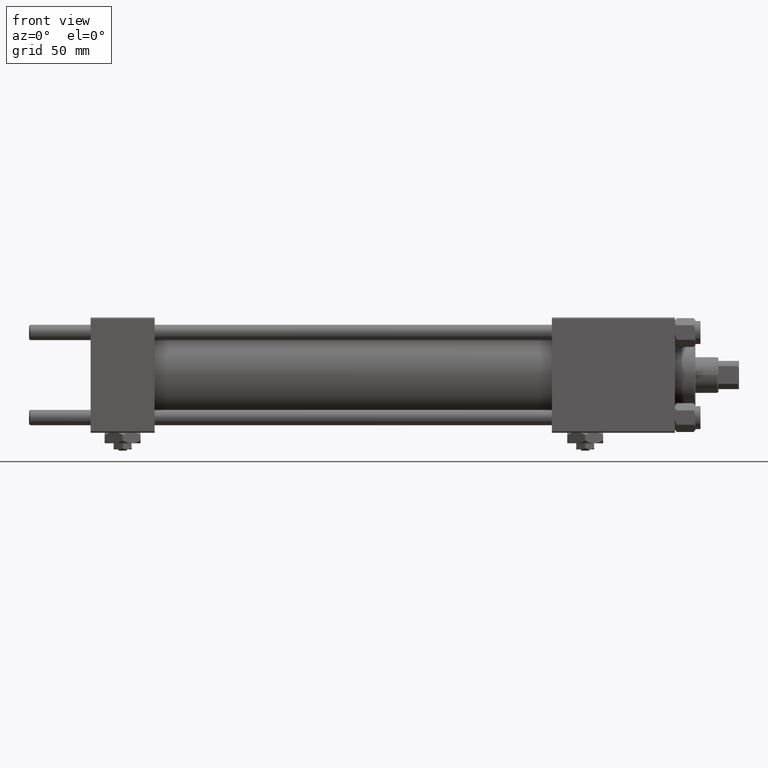
[diagram: clean part render]
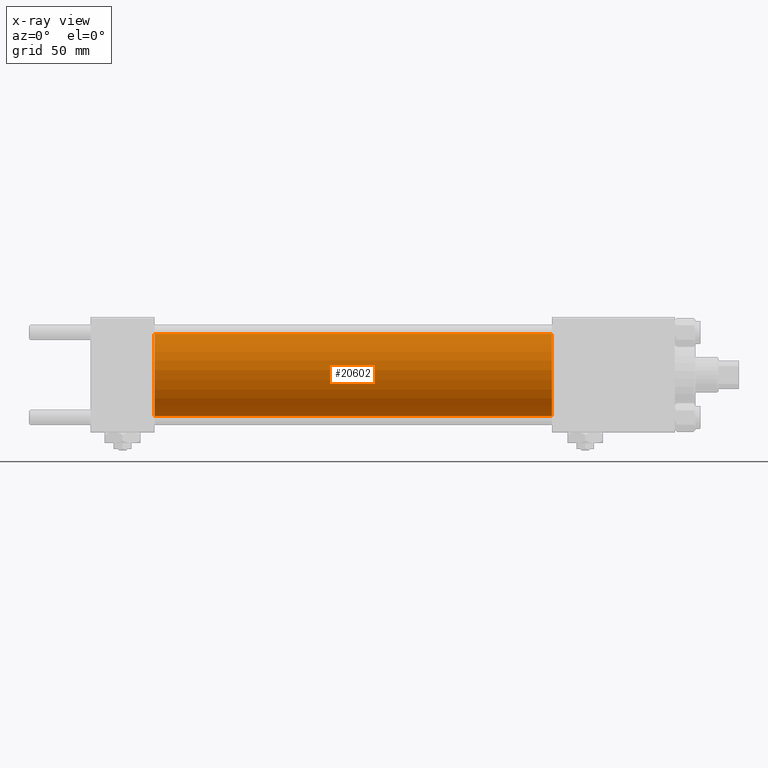
[diagram: x-ray — body ghosted, one internal face saturated and labeled with its STEP entity id]
A machine part, front view, then the same camera in x-ray: the body is ghosted and one INTERNAL B-rep face — a face not visible from any outside direction — is saturated and labeled: STEP entity #20602.
In plain terms, the highlighted cylindrical surface (partial cylindrical patch) has radius 16 mm, axis along (-1, -0, -0).
Its self-contained STEP definition (entity closure, byte-faithful):
#319 = EDGE_LOOP ( 'NONE', ( #29990, #34328, #2302, #33707 ) ) ;
#2255 = DIRECTION ( 'NONE',  ( -1.000000000000000000, -0.000000000000000000, -0.000000000000000000 ) ) ;
#2302 = ORIENTED_EDGE ( 'NONE', *, *, #3633, .F. ) ;
#2698 = AXIS2_PLACEMENT_3D ( 'NONE', #39652, #19740, #11349 ) ;
#3633 = EDGE_CURVE ( 'NONE', #46367, #28181, #22751, .T. ) ;
#3828 = CARTESIAN_POINT ( 'NONE',  ( 180.0000000000000000, 1.959434878635765131E-15, -16.00000000000000000 ) ) ;
#4083 = LINE ( 'NONE', #3828, #35471 ) ;
#7021 = CIRCLE ( 'NONE', #43042, 16.00000000000000000 ) ;
#8909 = CARTESIAN_POINT ( 'NONE',  ( 25.00000000000000000, 0.000000000000000000, 16.00000000000000000 ) ) ;
#11349 = DIRECTION ( 'NONE',  ( 0.000000000000000000, 0.000000000000000000, -1.000000000000000000 ) ) ;
#13197 = FACE_OUTER_BOUND ( 'NONE', #319, .T. ) ;
#14820 = CARTESIAN_POINT ( 'NONE',  ( 180.0000000000000000, 0.000000000000000000, 16.00000000000000000 ) ) ;
#19740 = DIRECTION ( 'NONE',  ( 1.000000000000000000, 0.000000000000000000, 0.000000000000000000 ) ) ;
#20602 = ADVANCED_FACE ( 'NONE', ( #13197 ), #40734, .F. ) ;
#22663 = VERTEX_POINT ( 'NONE', #40950 ) ;
#22751 = CIRCLE ( 'NONE', #2698, 16.00000000000000000 ) ;
#24274 = DIRECTION ( 'NONE',  ( -1.000000000000000000, -0.000000000000000000, -0.000000000000000000 ) ) ;
#26356 = LINE ( 'NONE', #14820, #30829 ) ;
#28181 = VERTEX_POINT ( 'NONE', #42636 ) ;
#29196 = DIRECTION ( 'NONE',  ( 0.000000000000000000, 0.000000000000000000, 1.000000000000000000 ) ) ;
#29450 = DIRECTION ( 'NONE',  ( -1.000000000000000000, -0.000000000000000000, -0.000000000000000000 ) ) ;
#29990 = ORIENTED_EDGE ( 'NONE', *, *, #37085, .T. ) ;
#30829 = VECTOR ( 'NONE', #2255, 1000.000000000000000 ) ;
#33707 = ORIENTED_EDGE ( 'NONE', *, *, #50834, .F. ) ;
#34328 = ORIENTED_EDGE ( 'NONE', *, *, #36580, .T. ) ;
#35471 = VECTOR ( 'NONE', #24274, 1000.000000000000000 ) ;
#36580 = EDGE_CURVE ( 'NONE', #22663, #28181, #4083, .T. ) ;
#37085 = EDGE_CURVE ( 'NONE', #38142, #22663, #7021, .T. ) ;
#38142 = VERTEX_POINT ( 'NONE', #40006 ) ;
#38702 = DIRECTION ( 'NONE',  ( 0.000000000000000000, 0.000000000000000000, -1.000000000000000000 ) ) ;
#38971 = AXIS2_PLACEMENT_3D ( 'NONE', #48380, #29450, #29196 ) ;
#39652 = CARTESIAN_POINT ( 'NONE',  ( 25.00000000000000000, 0.000000000000000000, 0.000000000000000000 ) ) ;
#40006 = CARTESIAN_POINT ( 'NONE',  ( 180.0000000000000000, 0.000000000000000000, 16.00000000000000000 ) ) ;
#40734 = CYLINDRICAL_SURFACE ( 'NONE', #38971, 16.00000000000000000 ) ;
#40950 = CARTESIAN_POINT ( 'NONE',  ( 180.0000000000000000, 1.959434878635765131E-15, -16.00000000000000000 ) ) ;
#42636 = CARTESIAN_POINT ( 'NONE',  ( 25.00000000000000000, 1.959434878635765131E-15, -16.00000000000000000 ) ) ;
#43042 = AXIS2_PLACEMENT_3D ( 'NONE', #51312, #43430, #38702 ) ;
#43430 = DIRECTION ( 'NONE',  ( 1.000000000000000000, 0.000000000000000000, 0.000000000000000000 ) ) ;
#46367 = VERTEX_POINT ( 'NONE', #8909 ) ;
#48380 = CARTESIAN_POINT ( 'NONE',  ( 180.0000000000000000, 0.000000000000000000, 0.000000000000000000 ) ) ;
#50834 = EDGE_CURVE ( 'NONE', #38142, #46367, #26356, .T. ) ;
#51312 = CARTESIAN_POINT ( 'NONE',  ( 180.0000000000000000, 0.000000000000000000, 0.000000000000000000 ) ) ;